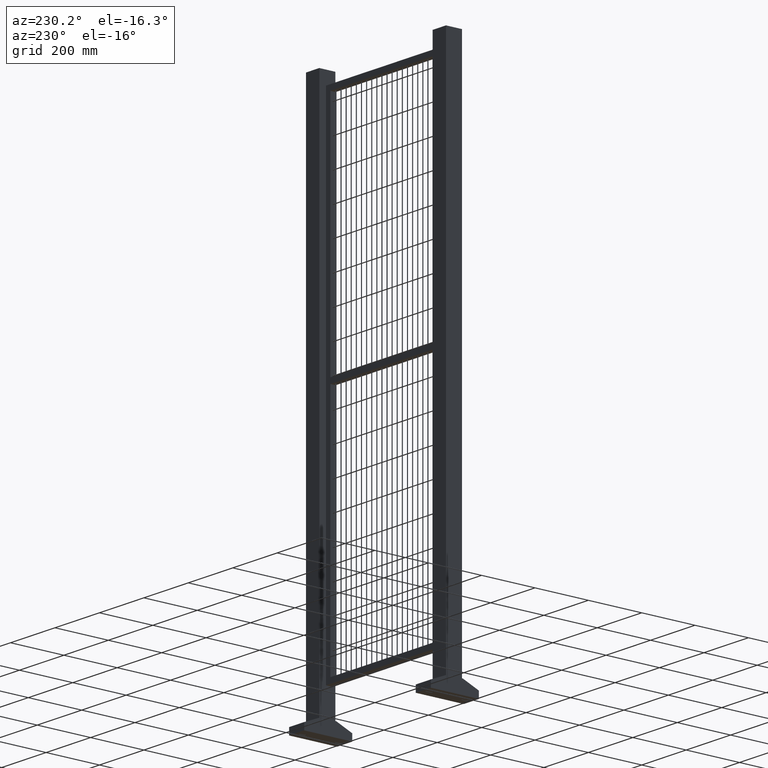
[diagram: clean part render]
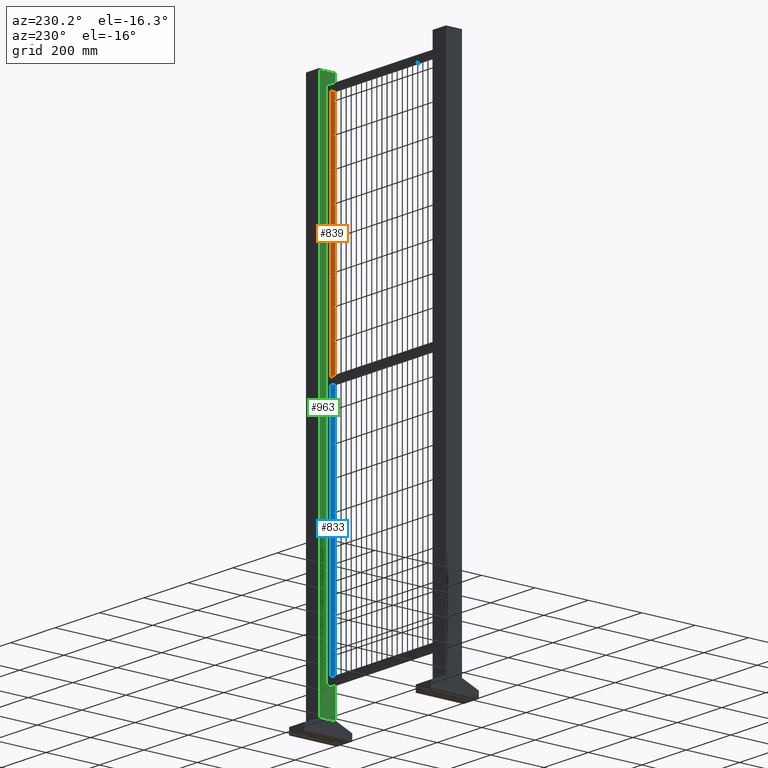
[diagram: same view with three faces highlighted in distinct colors, each labeled with its STEP entity id]
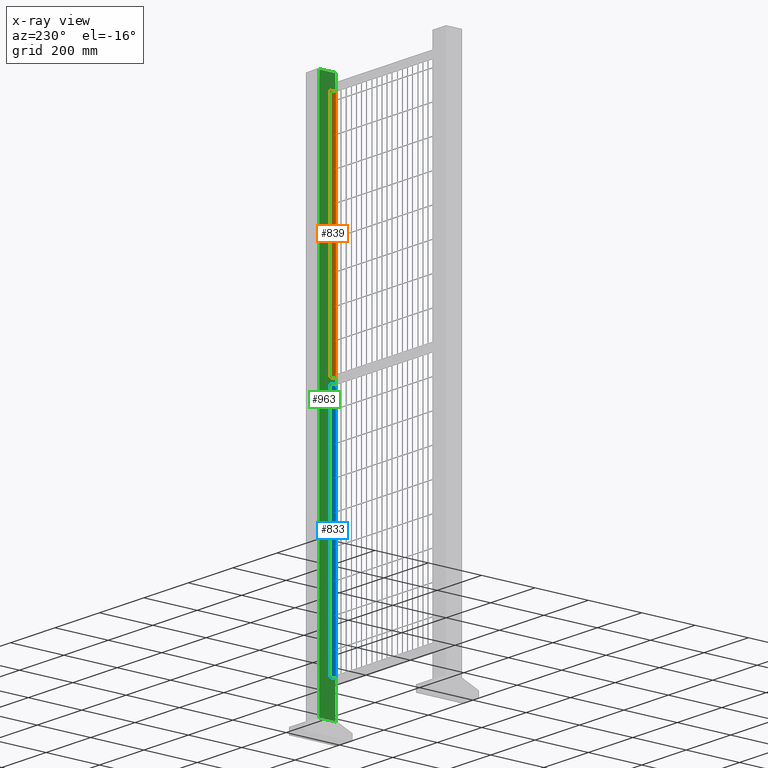
[diagram: x-ray of the same camera — body ghosted, the three highlighted faces saturated]
A machine part, auxiliary view with three faces highlighted in distinct colors.
The next image is the same camera in x-ray (body ghosted, the three faces saturated) — at least one of them is partly hidden behind the body in this view.
Their STEP definitions:

[orange] entity #839 — the highlighted planar face has unit normal (-1, 0, -0).
#70=LINE('',#2990,#164);
#72=LINE('',#2994,#166);
#73=LINE('',#2997,#167);
#74=LINE('',#2998,#168);
#164=VECTOR('',#2420,1.);
#166=VECTOR('',#2424,1.);
#167=VECTOR('',#2425,1.);
#168=VECTOR('',#2426,1.);
#615=PLANE('',#2129);
#723=FACE_OUTER_BOUND('',#1145,.T.);
#839=ADVANCED_FACE('',(#723),#615,.T.);
#1145=EDGE_LOOP('',(#1363,#1364,#1365,#1366));
#1363=ORIENTED_EDGE('',*,*,#1855,.F.);
#1364=ORIENTED_EDGE('',*,*,#1856,.T.);
#1365=ORIENTED_EDGE('',*,*,#1853,.T.);
#1366=ORIENTED_EDGE('',*,*,#1857,.F.);
#1705=VERTEX_POINT('',#2989);
#1706=VERTEX_POINT('',#2991);
#1707=VERTEX_POINT('',#2995);
#1708=VERTEX_POINT('',#2996);
#1853=EDGE_CURVE('',#1706,#1705,#70,.T.);
#1855=EDGE_CURVE('',#1707,#1708,#72,.T.);
#1856=EDGE_CURVE('',#1707,#1706,#73,.T.);
#1857=EDGE_CURVE('',#1708,#1705,#74,.T.);
#2129=AXIS2_PLACEMENT_3D('',#2999,#2427,#2428);
#2420=DIRECTION('',(0.,1.,0.));
#2424=DIRECTION('',(0.,1.,0.));
#2425=DIRECTION('',(-6.30808536718839E-17,0.,1.));
#2426=DIRECTION('',(-6.30808536718839E-17,0.,1.));
#2427=DIRECTION('',(-1.,0.,-6.30808536718839E-17));
#2428=DIRECTION('',(-5.55111512312578E-17,0.,1.));
#2989=CARTESIAN_POINT('',(230.,10.,880.));
#2990=CARTESIAN_POINT('',(230.,-10.,880.));
#2991=CARTESIAN_POINT('',(230.,-10.,880.));
#2994=CARTESIAN_POINT('',(230.,-10.,20.));
#2995=CARTESIAN_POINT('',(230.,-10.,20.));
#2996=CARTESIAN_POINT('',(230.,10.,20.));
#2997=CARTESIAN_POINT('',(230.,-10.,-880.));
#2998=CARTESIAN_POINT('',(230.,10.,-880.));
#2999=CARTESIAN_POINT('',(230.,-10.,-880.));

[blue] entity #833 — the highlighted planar face has unit normal (-1, 0, -0).
#58=LINE('',#2950,#152);
#59=LINE('',#2953,#153);
#60=LINE('',#2955,#154);
#61=LINE('',#2957,#155);
#152=VECTOR('',#2386,1.);
#153=VECTOR('',#2387,1.);
#154=VECTOR('',#2388,1.);
#155=VECTOR('',#2389,1.);
#611=PLANE('',#2117);
#721=FACE_OUTER_BOUND('',#1133,.T.);
#833=ADVANCED_FACE('',(#721),#611,.T.);
#1133=EDGE_LOOP('',(#1339,#1340,#1341,#1342));
#1339=ORIENTED_EDGE('',*,*,#1835,.T.);
#1340=ORIENTED_EDGE('',*,*,#1836,.T.);
#1341=ORIENTED_EDGE('',*,*,#1837,.F.);
#1342=ORIENTED_EDGE('',*,*,#1838,.F.);
#1689=VERTEX_POINT('',#2951);
#1690=VERTEX_POINT('',#2952);
#1691=VERTEX_POINT('',#2954);
#1692=VERTEX_POINT('',#2956);
#1835=EDGE_CURVE('',#1689,#1690,#58,.T.);
#1836=EDGE_CURVE('',#1690,#1691,#59,.T.);
#1837=EDGE_CURVE('',#1692,#1691,#60,.T.);
#1838=EDGE_CURVE('',#1689,#1692,#61,.T.);
#2117=AXIS2_PLACEMENT_3D('',#2958,#2390,#2391);
#2386=DIRECTION('',(-6.30808536718839E-17,0.,1.));
#2387=DIRECTION('',(0.,1.,0.));
#2388=DIRECTION('',(-6.30808536718839E-17,0.,1.));
#2389=DIRECTION('',(0.,1.,0.));
#2390=DIRECTION('',(-1.,0.,-6.30808536718839E-17));
#2391=DIRECTION('',(-5.55111512312578E-17,0.,1.));
#2950=CARTESIAN_POINT('',(230.,-10.,-880.));
#2951=CARTESIAN_POINT('',(230.,-10.,-880.));
#2952=CARTESIAN_POINT('',(230.,-10.,0.));
#2953=CARTESIAN_POINT('',(230.,-10.,0.));
#2954=CARTESIAN_POINT('',(230.,10.,0.));
#2955=CARTESIAN_POINT('',(230.,10.,-880.));
#2956=CARTESIAN_POINT('',(230.,10.,-880.));
#2957=CARTESIAN_POINT('',(230.,-10.,-880.));
#2958=CARTESIAN_POINT('',(230.,-10.,-880.));

[green] entity #963 — the highlighted planar face has unit normal (1, 0, -0).
#130=LINE('',#3347,#224);
#133=LINE('',#3353,#227);
#136=LINE('',#3359,#230);
#139=LINE('',#3364,#233);
#224=VECTOR('',#2862,1.);
#227=VECTOR('',#2867,1.);
#230=VECTOR('',#2872,1.);
#233=VECTOR('',#2877,1.);
#703=PLANE('',#2323);
#810=FACE_OUTER_BOUND('',#1311,.T.);
#963=ADVANCED_FACE('',(#810),#703,.F.);
#1311=EDGE_LOOP('',(#1647,#1648,#1649,#1650));
#1647=ORIENTED_EDGE('',*,*,#1983,.F.);
#1648=ORIENTED_EDGE('',*,*,#1992,.F.);
#1649=ORIENTED_EDGE('',*,*,#1989,.F.);
#1650=ORIENTED_EDGE('',*,*,#1986,.F.);
#1811=VERTEX_POINT('',#3346);
#1812=VERTEX_POINT('',#3348);
#1814=VERTEX_POINT('',#3354);
#1816=VERTEX_POINT('',#3360);
#1983=EDGE_CURVE('',#1811,#1812,#130,.T.);
#1986=EDGE_CURVE('',#1812,#1814,#133,.T.);
#1989=EDGE_CURVE('',#1814,#1816,#136,.T.);
#1992=EDGE_CURVE('',#1816,#1811,#139,.T.);
#2323=AXIS2_PLACEMENT_3D('',#3366,#2880,#2881);
#2862=DIRECTION('',(0.,0.,-1.));
#2867=DIRECTION('',(-1.,0.,0.));
#2872=DIRECTION('',(1.78286071528963E-18,0.,1.));
#2877=DIRECTION('',(1.,0.,0.));
#2880=DIRECTION('',(0.,1.,0.));
#2881=DIRECTION('',(0.,0.,1.));
#3346=CARTESIAN_POINT('',(30.,-30.,1996.));
#3347=CARTESIAN_POINT('',(30.,-30.,1996.));
#3348=CARTESIAN_POINT('',(30.,-30.,50.));
#3353=CARTESIAN_POINT('',(30.,-30.,50.));
#3354=CARTESIAN_POINT('',(-30.,-30.,50.));
#3359=CARTESIAN_POINT('',(-30.,-30.,50.));
#3360=CARTESIAN_POINT('',(-30.,-30.,1996.));
#3364=CARTESIAN_POINT('',(-30.,-30.,1996.));
#3366=CARTESIAN_POINT('',(0.,-30.,0.));